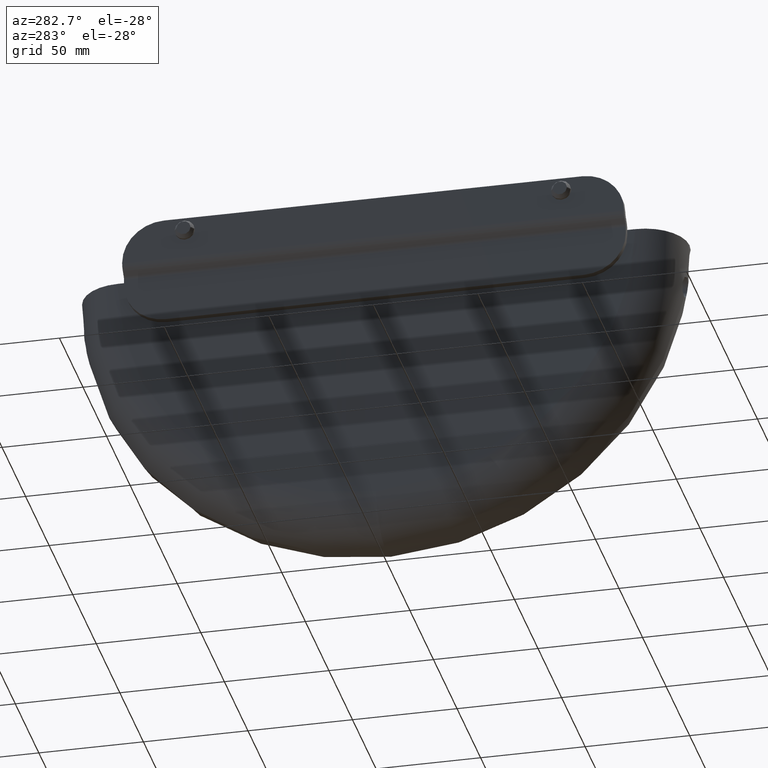
[diagram: clean part render]
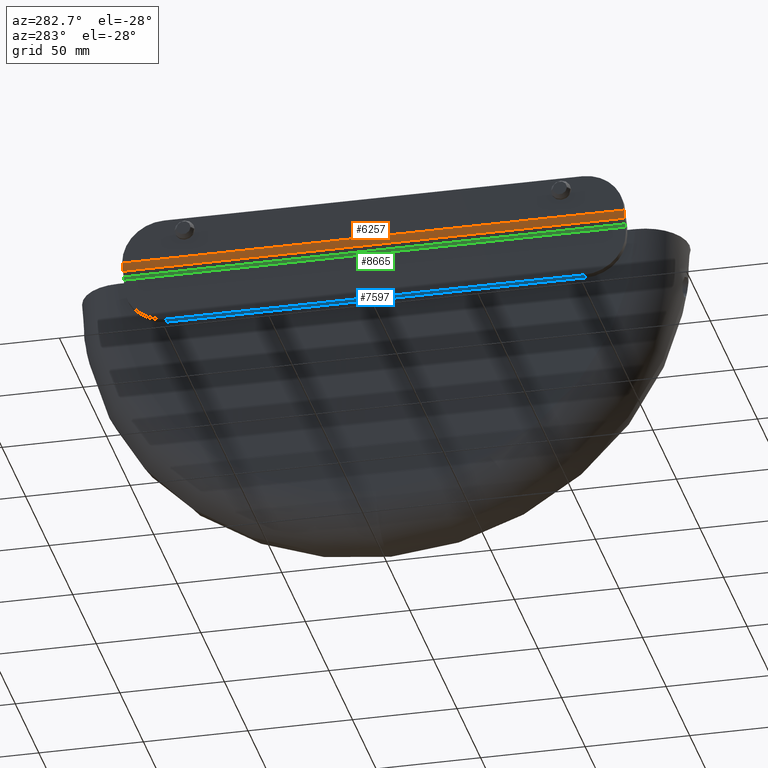
[diagram: same view with three faces highlighted in distinct colors, each labeled with its STEP entity id]
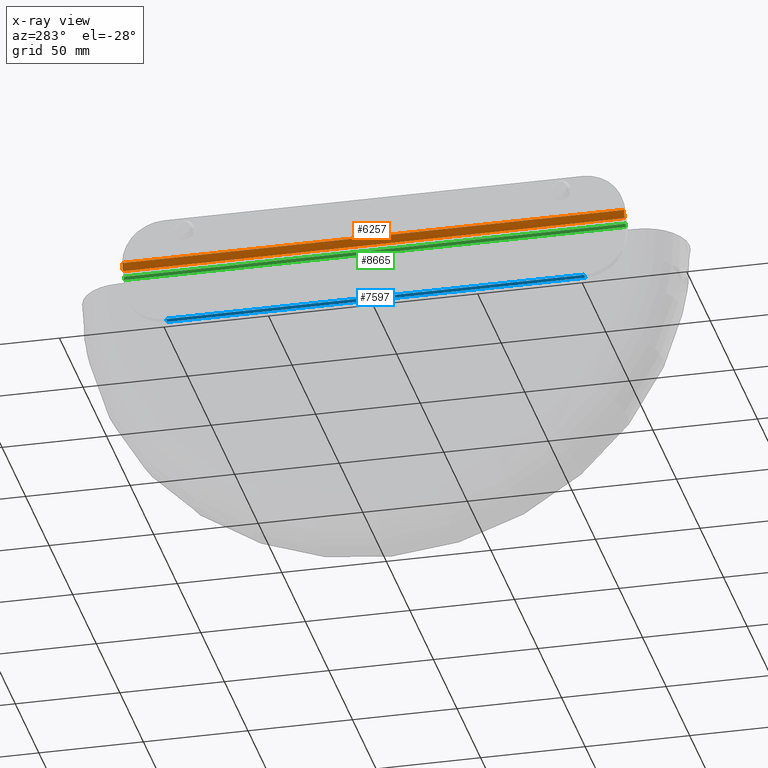
[diagram: x-ray of the same camera — body ghosted, the three highlighted faces saturated]
A machine part, auxiliary view with three faces highlighted in distinct colors.
The next image is the same camera in x-ray (body ghosted, the three faces saturated) — at least one of them is partly hidden behind the body in this view.
Their STEP definitions:

[orange] entity #6257 — the highlighted cylindrical surface (edge-blend (fillet) strip) has radius 5 mm, axis along (-0, -1, -0).
#55 = DIRECTION ( 'NONE',  ( -0.000000000000000000, -1.000000000000000000, -0.000000000000000000 ) ) ;
#91 = ORIENTED_EDGE ( 'NONE', *, *, #11903, .T. ) ;
#453 = CYLINDRICAL_SURFACE ( 'NONE', #7614, 5.000000000000002665 ) ;
#528 = AXIS2_PLACEMENT_3D ( 'NONE', #6024, #13441, #2305 ) ;
#635 = CARTESIAN_POINT ( 'NONE',  ( -26.73553390593272283, 120.0000000000000000, 3.363961030678903619 ) ) ;
#651 = CARTESIAN_POINT ( 'NONE',  ( -26.73553390593272283, -120.0000000000000000, 3.363961030678903619 ) ) ;
#871 = CIRCLE ( 'NONE', #14747, 5.000000000000002665 ) ;
#2179 = DIRECTION ( 'NONE',  ( -0.000000000000000000, -1.000000000000000000, -0.000000000000000000 ) ) ;
#2305 = DIRECTION ( 'NONE',  ( 0.000000000000000000, 0.000000000000000000, 1.000000000000000000 ) ) ;
#2333 = DIRECTION ( 'NONE',  ( 0.000000000000000000, 0.000000000000000000, 1.000000000000000000 ) ) ;
#2789 = VECTOR ( 'NONE', #5551, 1000.000000000000000 ) ;
#3765 = VERTEX_POINT ( 'NONE', #9093 ) ;
#3883 = CARTESIAN_POINT ( 'NONE',  ( -28.19999999999999574, -120.0000000000000000, 6.899494936611650253 ) ) ;
#4363 = LINE ( 'NONE', #7677, #10206 ) ;
#4615 = CIRCLE ( 'NONE', #528, 5.000000000000002665 ) ;
#4695 = VERTEX_POINT ( 'NONE', #3883 ) ;
#5232 = EDGE_CURVE ( 'NONE', #3765, #4695, #15685, .T. ) ;
#5551 = DIRECTION ( 'NONE',  ( -0.000000000000000000, -1.000000000000000000, -0.000000000000000000 ) ) ;
#6024 = CARTESIAN_POINT ( 'NONE',  ( -23.19999999999999218, -120.0000000000000000, 6.899494936611650253 ) ) ;
#6045 = ORIENTED_EDGE ( 'NONE', *, *, #6909, .F. ) ;
#6257 = ADVANCED_FACE ( 'NONE', ( #15499 ), #453, .T. ) ;
#6909 = EDGE_CURVE ( 'NONE', #16110, #3765, #871, .T. ) ;
#7614 = AXIS2_PLACEMENT_3D ( 'NONE', #9658, #2179, #10820 ) ;
#7677 = CARTESIAN_POINT ( 'NONE',  ( -26.73553390593272283, 120.0000000000000000, 3.363961030678903619 ) ) ;
#8141 = VERTEX_POINT ( 'NONE', #651 ) ;
#8663 = DIRECTION ( 'NONE',  ( 0.000000000000000000, 1.000000000000000000, 0.000000000000000000 ) ) ;
#8768 = CARTESIAN_POINT ( 'NONE',  ( -23.19999999999999218, 120.0000000000000000, 6.899494936611650253 ) ) ;
#9093 = CARTESIAN_POINT ( 'NONE',  ( -28.19999999999999574, 120.0000000000000000, 6.899494936611650253 ) ) ;
#9658 = CARTESIAN_POINT ( 'NONE',  ( -23.19999999999999218, 120.0000000000000000, 6.899494936611650253 ) ) ;
#10206 = VECTOR ( 'NONE', #55, 1000.000000000000000 ) ;
#10820 = DIRECTION ( 'NONE',  ( 0.000000000000000000, 0.000000000000000000, -1.000000000000000000 ) ) ;
#11387 = EDGE_LOOP ( 'NONE', ( #91, #16151, #6045, #13697 ) ) ;
#11903 = EDGE_CURVE ( 'NONE', #8141, #4695, #4615, .T. ) ;
#13441 = DIRECTION ( 'NONE',  ( 0.000000000000000000, 1.000000000000000000, 0.000000000000000000 ) ) ;
#13697 = ORIENTED_EDGE ( 'NONE', *, *, #15036, .T. ) ;
#14174 = CARTESIAN_POINT ( 'NONE',  ( -28.19999999999999574, 120.0000000000000000, 6.899494936611650253 ) ) ;
#14747 = AXIS2_PLACEMENT_3D ( 'NONE', #8768, #8663, #2333 ) ;
#15036 = EDGE_CURVE ( 'NONE', #16110, #8141, #4363, .T. ) ;
#15499 = FACE_OUTER_BOUND ( 'NONE', #11387, .T. ) ;
#15685 = LINE ( 'NONE', #14174, #2789 ) ;
#16110 = VERTEX_POINT ( 'NONE', #635 ) ;
#16151 = ORIENTED_EDGE ( 'NONE', *, *, #5232, .F. ) ;

[blue] entity #7597 — the highlighted planar face has unit normal (0, 0, 1).
#206 = FACE_OUTER_BOUND ( 'NONE', #2533, .T. ) ;
#495 = LINE ( 'NONE', #9010, #14364 ) ;
#553 = CARTESIAN_POINT ( 'NONE',  ( -24.19999999999999929, 99.99999999999998579, -22.92893218813452449 ) ) ;
#657 = DIRECTION ( 'NONE',  ( 1.000000000000000000, -0.000000000000000000, -0.000000000000000000 ) ) ;
#885 = PLANE ( 'NONE',  #11418 ) ;
#960 = CARTESIAN_POINT ( 'NONE',  ( -21.19999999999999929, 99.99999999999998579, -22.92893218813452449 ) ) ;
#1459 = VECTOR ( 'NONE', #657, 1000.000000000000000 ) ;
#2122 = DIRECTION ( 'NONE',  ( 0.000000000000000000, 0.000000000000000000, 1.000000000000000000 ) ) ;
#2195 = CARTESIAN_POINT ( 'NONE',  ( -21.19999999999999929, -99.99999999999997158, -22.92893218813452449 ) ) ;
#2533 = EDGE_LOOP ( 'NONE', ( #15094, #3055, #5283, #12934 ) ) ;
#2739 = DIRECTION ( 'NONE',  ( -1.000000000000000000, 0.000000000000000000, 0.000000000000000000 ) ) ;
#3055 = ORIENTED_EDGE ( 'NONE', *, *, #12189, .T. ) ;
#3321 = EDGE_CURVE ( 'NONE', #7331, #12179, #495, .T. ) ;
#3889 = VERTEX_POINT ( 'NONE', #960 ) ;
#3940 = EDGE_CURVE ( 'NONE', #3889, #7331, #13367, .T. ) ;
#4008 = LINE ( 'NONE', #553, #1459 ) ;
#4554 = CARTESIAN_POINT ( 'NONE',  ( -24.19999999999999929, 120.0000000000000000, -22.92893218813452449 ) ) ;
#5107 = CARTESIAN_POINT ( 'NONE',  ( -24.19999999999999929, 99.99999999999998579, -22.92893218813452449 ) ) ;
#5283 = ORIENTED_EDGE ( 'NONE', *, *, #3940, .T. ) ;
#5368 = VECTOR ( 'NONE', #12210, 1000.000000000000000 ) ;
#6130 = VECTOR ( 'NONE', #6454, 1000.000000000000000 ) ;
#6454 = DIRECTION ( 'NONE',  ( -0.000000000000000000, -1.000000000000000000, -0.000000000000000000 ) ) ;
#7331 = VERTEX_POINT ( 'NONE', #2195 ) ;
#7597 = ADVANCED_FACE ( 'NONE', ( #206 ), #885, .F. ) ;
#7864 = LINE ( 'NONE', #13934, #6130 ) ;
#9010 = CARTESIAN_POINT ( 'NONE',  ( -24.19999999999999929, -99.99999999999997158, -22.92893218813452449 ) ) ;
#9688 = CARTESIAN_POINT ( 'NONE',  ( -21.19999999999999929, 120.0000000000000000, -22.92893218813452449 ) ) ;
#11418 = AXIS2_PLACEMENT_3D ( 'NONE', #4554, #2122, #13273 ) ;
#11500 = VERTEX_POINT ( 'NONE', #5107 ) ;
#12179 = VERTEX_POINT ( 'NONE', #13000 ) ;
#12189 = EDGE_CURVE ( 'NONE', #11500, #3889, #4008, .T. ) ;
#12210 = DIRECTION ( 'NONE',  ( -0.000000000000000000, -1.000000000000000000, -0.000000000000000000 ) ) ;
#12934 = ORIENTED_EDGE ( 'NONE', *, *, #3321, .T. ) ;
#13000 = CARTESIAN_POINT ( 'NONE',  ( -24.19999999999999929, -99.99999999999997158, -22.92893218813452449 ) ) ;
#13273 = DIRECTION ( 'NONE',  ( 1.000000000000000000, 0.000000000000000000, -0.000000000000000000 ) ) ;
#13367 = LINE ( 'NONE', #9688, #5368 ) ;
#13934 = CARTESIAN_POINT ( 'NONE',  ( -24.19999999999999929, 120.0000000000000000, -22.92893218813452449 ) ) ;
#14364 = VECTOR ( 'NONE', #2739, 1000.000000000000000 ) ;
#14545 = EDGE_CURVE ( 'NONE', #11500, #12179, #7864, .T. ) ;
#15094 = ORIENTED_EDGE ( 'NONE', *, *, #14545, .F. ) ;

[green] entity #8665 — the highlighted cylindrical surface (edge-blend (fillet) strip) has radius 2 mm, axis along (-0, -1, -0).
#874 = CARTESIAN_POINT ( 'NONE',  ( -24.19999999999999929, -120.0000000000000000, -1.224646799147352961E-16 ) ) ;
#1047 = AXIS2_PLACEMENT_3D ( 'NONE', #2272, #3533, #5995 ) ;
#1115 = EDGE_CURVE ( 'NONE', #1928, #10916, #8531, .T. ) ;
#1509 = CARTESIAN_POINT ( 'NONE',  ( -24.78578643762690348, 120.0000000000000000, 1.414213562373097810 ) ) ;
#1850 = EDGE_CURVE ( 'NONE', #10916, #1872, #15166, .T. ) ;
#1872 = VERTEX_POINT ( 'NONE', #12317 ) ;
#1928 = VERTEX_POINT ( 'NONE', #11235 ) ;
#2272 = CARTESIAN_POINT ( 'NONE',  ( -26.19999999999999929, 120.0000000000000000, 0.000000000000000000 ) ) ;
#2323 = DIRECTION ( 'NONE',  ( 0.000000000000000000, 0.000000000000000000, -1.000000000000000000 ) ) ;
#2705 = EDGE_LOOP ( 'NONE', ( #14462, #11208, #10697, #9218 ) ) ;
#3031 = EDGE_CURVE ( 'NONE', #10847, #1872, #11452, .T. ) ;
#3533 = DIRECTION ( 'NONE',  ( -0.000000000000000000, -1.000000000000000000, 0.000000000000000000 ) ) ;
#3640 = CARTESIAN_POINT ( 'NONE',  ( -26.19999999999999929, -120.0000000000000000, 0.000000000000000000 ) ) ;
#5016 = AXIS2_PLACEMENT_3D ( 'NONE', #15910, #10726, #11983 ) ;
#5574 = DIRECTION ( 'NONE',  ( -0.000000000000000000, -1.000000000000000000, -0.000000000000000000 ) ) ;
#5995 = DIRECTION ( 'NONE',  ( 0.000000000000000000, 0.000000000000000000, -1.000000000000000000 ) ) ;
#6020 = AXIS2_PLACEMENT_3D ( 'NONE', #3640, #13636, #2323 ) ;
#6790 = EDGE_CURVE ( 'NONE', #1928, #10847, #9053, .T. ) ;
#8156 = CARTESIAN_POINT ( 'NONE',  ( -24.19999999999999929, 120.0000000000000000, -1.224646799147352961E-16 ) ) ;
#8498 = VECTOR ( 'NONE', #5574, 1000.000000000000000 ) ;
#8531 = LINE ( 'NONE', #8156, #14410 ) ;
#8665 = ADVANCED_FACE ( 'NONE', ( #15405 ), #10128, .F. ) ;
#9053 = CIRCLE ( 'NONE', #1047, 1.999999999999999556 ) ;
#9218 = ORIENTED_EDGE ( 'NONE', *, *, #1115, .T. ) ;
#10128 = CYLINDRICAL_SURFACE ( 'NONE', #5016, 1.999999999999999556 ) ;
#10566 = DIRECTION ( 'NONE',  ( -0.000000000000000000, -1.000000000000000000, -0.000000000000000000 ) ) ;
#10697 = ORIENTED_EDGE ( 'NONE', *, *, #6790, .F. ) ;
#10726 = DIRECTION ( 'NONE',  ( -0.000000000000000000, -1.000000000000000000, -0.000000000000000000 ) ) ;
#10847 = VERTEX_POINT ( 'NONE', #1509 ) ;
#10916 = VERTEX_POINT ( 'NONE', #874 ) ;
#11208 = ORIENTED_EDGE ( 'NONE', *, *, #3031, .F. ) ;
#11235 = CARTESIAN_POINT ( 'NONE',  ( -24.19999999999999929, 120.0000000000000000, -1.224646799147352961E-16 ) ) ;
#11452 = LINE ( 'NONE', #14256, #8498 ) ;
#11983 = DIRECTION ( 'NONE',  ( 0.000000000000000000, 0.000000000000000000, -1.000000000000000000 ) ) ;
#12317 = CARTESIAN_POINT ( 'NONE',  ( -24.78578643762690348, -120.0000000000000000, 1.414213562373097810 ) ) ;
#13636 = DIRECTION ( 'NONE',  ( -0.000000000000000000, -1.000000000000000000, 0.000000000000000000 ) ) ;
#14256 = CARTESIAN_POINT ( 'NONE',  ( -24.78578643762690348, 120.0000000000000000, 1.414213562373097810 ) ) ;
#14410 = VECTOR ( 'NONE', #10566, 1000.000000000000000 ) ;
#14462 = ORIENTED_EDGE ( 'NONE', *, *, #1850, .T. ) ;
#15166 = CIRCLE ( 'NONE', #6020, 1.999999999999999556 ) ;
#15405 = FACE_OUTER_BOUND ( 'NONE', #2705, .T. ) ;
#15910 = CARTESIAN_POINT ( 'NONE',  ( -26.19999999999999929, 120.0000000000000000, 0.000000000000000000 ) ) ;